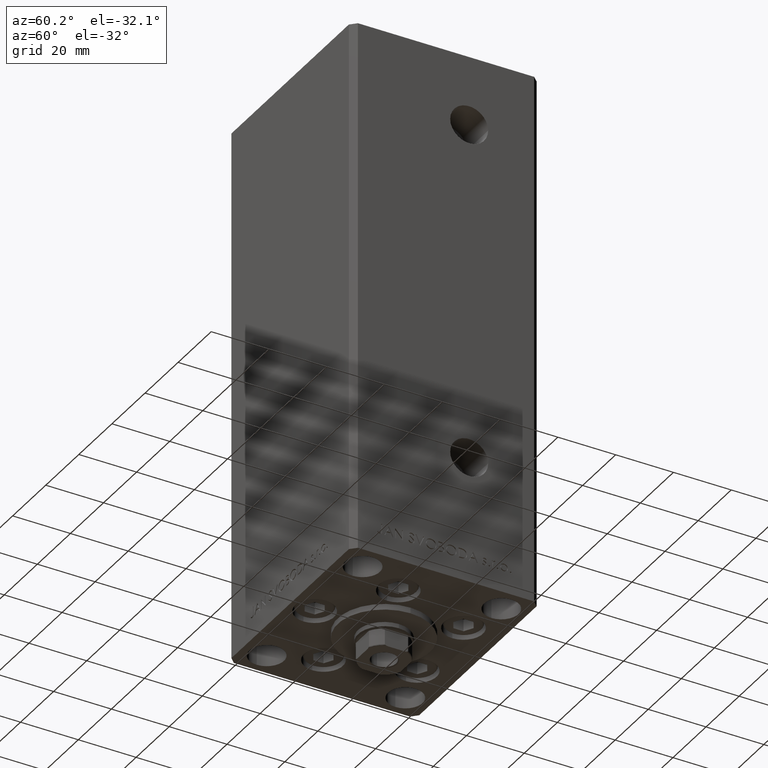
[diagram: clean part render]
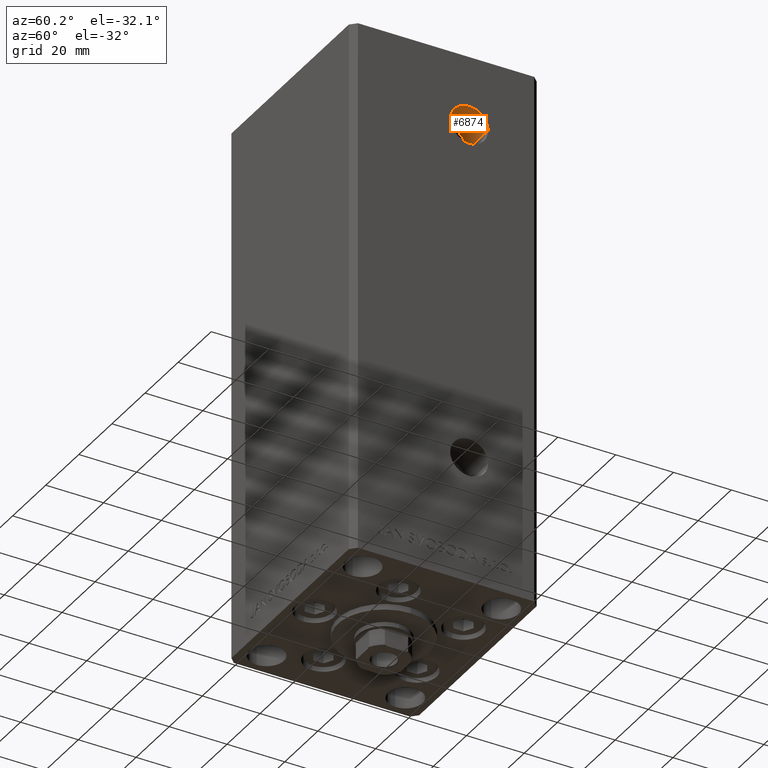
[diagram: same view with one face highlighted and labeled with its STEP entity id]
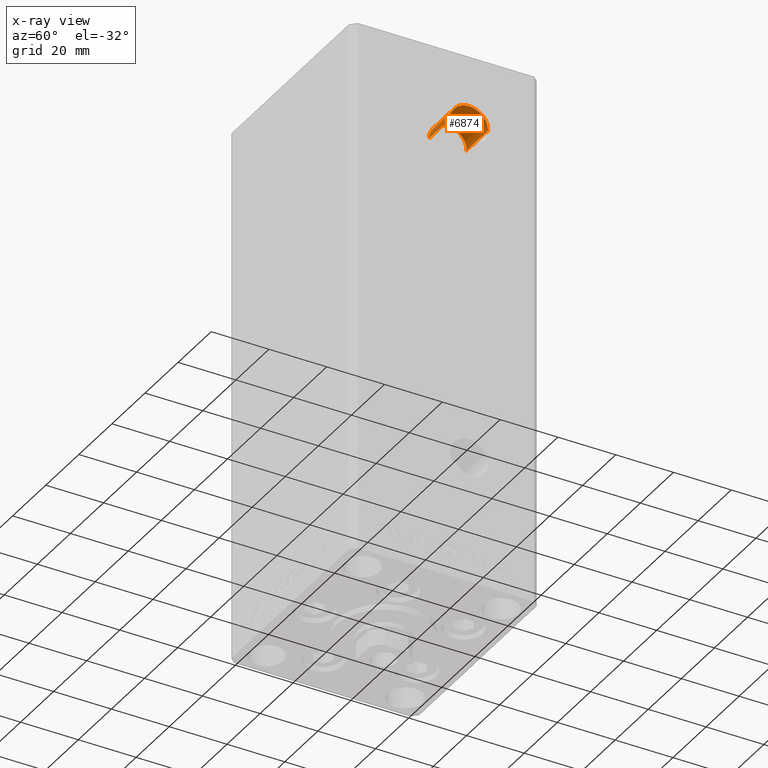
[diagram: x-ray of the same camera — body ghosted, the highlighted face saturated]
A machine part, auxiliary view. The second image highlights one B-rep face of the part: STEP entity #6874.
The next image is the same camera in x-ray: the body ghosted, the highlighted face saturated — about 0% of this face is hidden behind the body in this view.
In plain terms, the highlighted cylindrical surface (edge-blend (fillet) strip) has radius 6.58 mm, axis along (1, -0, 0).
Its self-contained STEP definition (entity closure, byte-faithful):
#1371 = CARTESIAN_POINT ( 'NONE',  ( 24.50000000000000000, 7.999999999999994671, 147.0000000000000000 ) ) ;
#2872 = CIRCLE ( 'NONE', #43469, 6.580000000000014282 ) ;
#3961 = CYLINDRICAL_SURFACE ( 'NONE', #35921, 6.580000000000014282 ) ;
#5790 = CARTESIAN_POINT ( 'NONE',  ( 24.50000000000000000, 1.419999999999979501, 147.0000000000000000 ) ) ;
#6473 = VERTEX_POINT ( 'NONE', #36405 ) ;
#6874 = ADVANCED_FACE ( 'NONE', ( #23794 ), #3961, .F. ) ;
#7714 = DIRECTION ( 'NONE',  ( 0.000000000000000000, 1.000000000000000000, 0.000000000000000000 ) ) ;
#10192 = DIRECTION ( 'NONE',  ( 1.000000000000000000, -2.275047181608927644E-16, -0.000000000000000000 ) ) ;
#10679 = VERTEX_POINT ( 'NONE', #42946 ) ;
#16574 = DIRECTION ( 'NONE',  ( 1.000000000000000000, -2.275047181608927644E-16, -0.000000000000000000 ) ) ;
#17726 = LINE ( 'NONE', #5790, #26560 ) ;
#22186 = EDGE_CURVE ( 'NONE', #24290, #10679, #2872, .T. ) ;
#23794 = FACE_OUTER_BOUND ( 'NONE', #36576, .T. ) ;
#24290 = VERTEX_POINT ( 'NONE', #43843 ) ;
#25677 = VERTEX_POINT ( 'NONE', #36086 ) ;
#26069 = ORIENTED_EDGE ( 'NONE', *, *, #27825, .F. ) ;
#26560 = VECTOR ( 'NONE', #47903, 1000.000000000000000 ) ;
#26669 = DIRECTION ( 'NONE',  ( 0.000000000000000000, 1.000000000000000000, 0.000000000000000000 ) ) ;
#27825 = EDGE_CURVE ( 'NONE', #10679, #6473, #17726, .T. ) ;
#28613 = CARTESIAN_POINT ( 'NONE',  ( 24.50000000000000000, 14.58000000000000895, 147.0000000000000000 ) ) ;
#29078 = EDGE_CURVE ( 'NONE', #25677, #6473, #43313, .T. ) ;
#29752 = AXIS2_PLACEMENT_3D ( 'NONE', #46876, #36353, #47356 ) ;
#35921 = AXIS2_PLACEMENT_3D ( 'NONE', #1371, #16574, #7714 ) ;
#36086 = CARTESIAN_POINT ( 'NONE',  ( 37.50000000000000000, 14.58000000000000540, 147.0000000000000000 ) ) ;
#36353 = DIRECTION ( 'NONE',  ( 1.000000000000000000, -2.275047181608927644E-16, 0.000000000000000000 ) ) ;
#36405 = CARTESIAN_POINT ( 'NONE',  ( 37.50000000000000000, 1.419999999999975948, 147.0000000000000000 ) ) ;
#36576 = EDGE_LOOP ( 'NONE', ( #26069, #43022, #40656, #37026 ) ) ;
#37026 = ORIENTED_EDGE ( 'NONE', *, *, #29078, .T. ) ;
#38892 = VECTOR ( 'NONE', #10192, 1000.000000000000000 ) ;
#40656 = ORIENTED_EDGE ( 'NONE', *, *, #48068, .T. ) ;
#41152 = CARTESIAN_POINT ( 'NONE',  ( 24.50000000000000000, 7.999999999999994671, 147.0000000000000000 ) ) ;
#42946 = CARTESIAN_POINT ( 'NONE',  ( 24.50000000000000000, 1.419999999999979501, 147.0000000000000000 ) ) ;
#43022 = ORIENTED_EDGE ( 'NONE', *, *, #22186, .F. ) ;
#43313 = CIRCLE ( 'NONE', #29752, 6.580000000000014282 ) ;
#43469 = AXIS2_PLACEMENT_3D ( 'NONE', #41152, #44884, #26669 ) ;
#43843 = CARTESIAN_POINT ( 'NONE',  ( 24.50000000000000000, 14.58000000000000895, 147.0000000000000000 ) ) ;
#44341 = LINE ( 'NONE', #28613, #38892 ) ;
#44884 = DIRECTION ( 'NONE',  ( 1.000000000000000000, -2.275047181608927644E-16, 0.000000000000000000 ) ) ;
#46876 = CARTESIAN_POINT ( 'NONE',  ( 37.50000000000000000, 7.999999999999991118, 147.0000000000000000 ) ) ;
#47356 = DIRECTION ( 'NONE',  ( 0.000000000000000000, 1.000000000000000000, 0.000000000000000000 ) ) ;
#47903 = DIRECTION ( 'NONE',  ( 1.000000000000000000, -2.275047181608927644E-16, -0.000000000000000000 ) ) ;
#48068 = EDGE_CURVE ( 'NONE', #24290, #25677, #44341, .T. ) ;